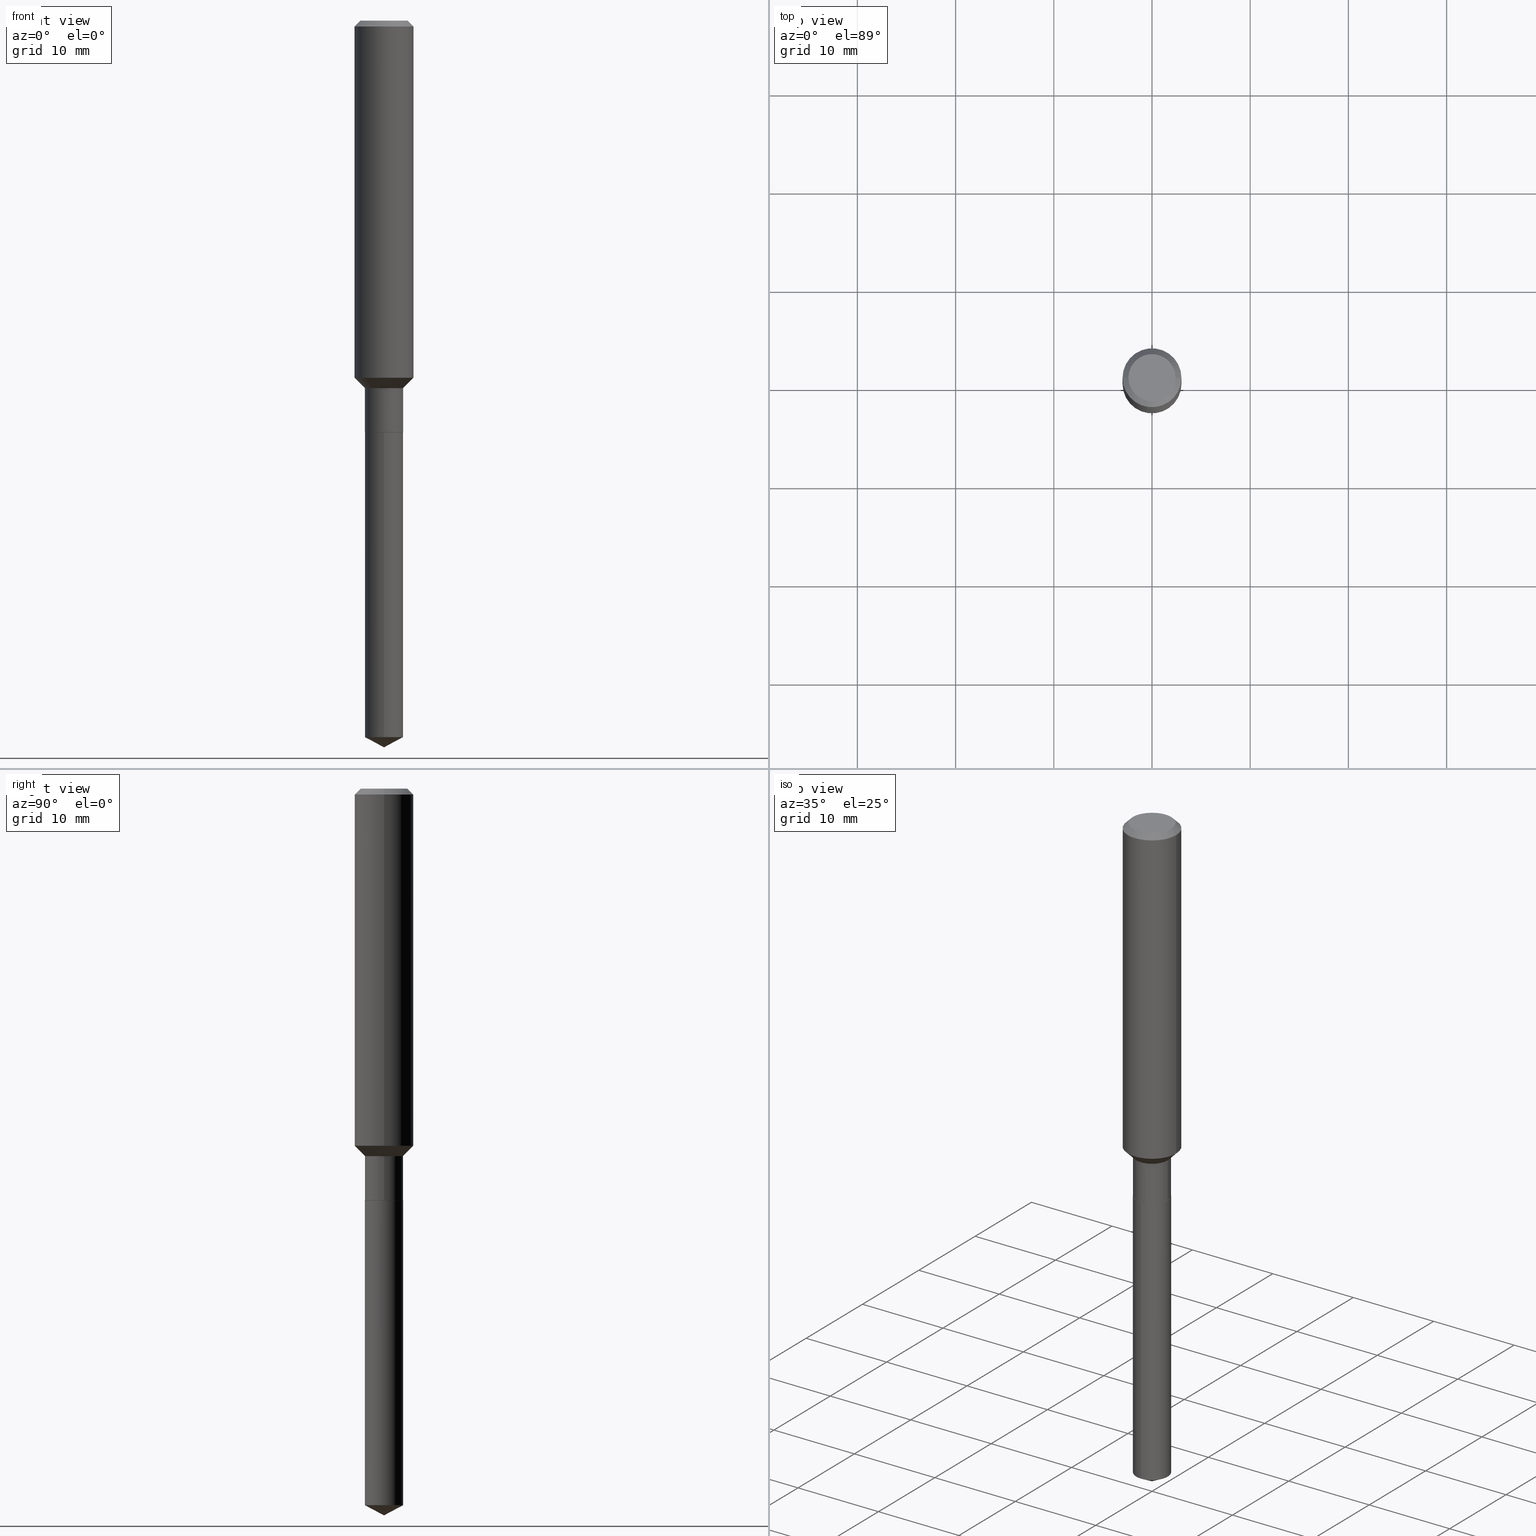
[diagram: canonical four-view strip — front | top / right | iso, engineering-drawing reading convention]
A machine part, canonical four-view strip (front | top / right | iso — engineering-drawing reading convention). The complete STEP part file that produces these views, byte-faithful:
ISO-10303-21;
HEADER;
FILE_DESCRIPTION (( 'STEP AP203' ),
    '1' );
FILE_NAME ('65009.STEP',
    '2024-04-24T19:45:47',
    ( '' ),
    ( '' ),
    'SwSTEP 2.0',
    'SolidWorks 2023',
    '' );
FILE_SCHEMA (( 'CONFIG_CONTROL_DESIGN' ));
ENDSEC;

DATA;
#1 = CARTESIAN_POINT ( 'NONE',  ( 0.07674999999999998490, -5.679243545762258658E-15, -1.473100000000000298 ) ) ;
#2 = CIRCLE ( 'NONE', #282, 0.07675000000000001266 ) ;
#3 = DIRECTION ( 'NONE',  ( 1.000000000000000000, 0.000000000000000000, 0.000000000000000000 ) ) ;
#4 = VERTEX_POINT ( 'NONE', #461 ) ;
#5 = ADVANCED_FACE ( 'NONE', ( #413 ), #339, .T. ) ;
#6 = APPROVAL_STATUS ( 'not_yet_approved' ) ;
#7 = EDGE_LOOP ( 'NONE', ( #47, #390, #361, #363 ) ) ;
#8 = CIRCLE ( 'NONE', #290, 0.07675000000000001266 ) ;
#9 = DIRECTION ( 'NONE',  ( -2.445468806185136597E-29, 3.491481338843145583E-15, 1.000000000000000000 ) ) ;
#10 = APPROVAL_PERSON_ORGANIZATION ( #312, #221, #124 ) ;
#11 = PRODUCT_RELATED_PRODUCT_CATEGORY ( 'detail', '', ( #77 ) ) ;
#12 = CARTESIAN_POINT ( 'NONE',  ( -0.07675000000000001266, -4.905209968372158594E-15, -1.649100000000000232 ) ) ;
#13 = EDGE_CURVE ( 'NONE', #319, #4, #170, .T. ) ;
#14 = DIRECTION ( 'NONE',  ( -2.445468806185136597E-29, 3.491481338843145583E-15, 1.000000000000000000 ) ) ;
#15 = ORIENTED_EDGE ( 'NONE', *, *, #80, .T. ) ;
#16 = FACE_OUTER_BOUND ( 'NONE', #181, .T. ) ;
#17 = AXIS2_PLACEMENT_3D ( 'NONE', #338, #490, #152 ) ;
#18 = VECTOR ( 'NONE', #226, 39.37007874015748143 ) ;
#19 = ORIENTED_EDGE ( 'NONE', *, *, #323, .T. ) ;
#20 = APPROVAL_PERSON_ORGANIZATION ( #22, #31, #478 ) ;
#21 = FACE_OUTER_BOUND ( 'NONE', #450, .T. ) ;
#22 = PERSON_AND_ORGANIZATION ( #327, #29 ) ;
#23 = EDGE_LOOP ( 'NONE', ( #378, #216, #197 ) ) ;
#24 = DESIGN_CONTEXT ( 'detailed design', #167, 'design' ) ;
#25 = FACE_OUTER_BOUND ( 'NONE', #249, .T. ) ;
#26 = EDGE_LOOP ( 'NONE', ( #422, #96, #57, #173 ) ) ;
#27 = FACE_OUTER_BOUND ( 'NONE', #26, .T. ) ;
#28 = ORIENTED_EDGE ( 'NONE', *, *, #39, .F. ) ;
#29 = ORGANIZATION ( 'UNSPECIFIED', 'UNSPECIFIED', '' ) ;
#30 = CARTESIAN_POINT ( 'NONE',  ( -0.07674999999999999878, 5.453415496958768840E-16, -3.775282681770640332E-30 ) ) ;
#31 = APPROVAL ( #298, 'UNSPECIFIED' ) ;
#32 = EDGE_CURVE ( 'NONE', #476, #213, #265, .T. ) ;
#33 = ORIENTED_EDGE ( 'NONE', *, *, #169, .T. ) ;
#34 = DIRECTION ( 'NONE',  ( 1.000000000000000000, -6.982962677686265133E-15, 0.000000000000000000 ) ) ;
#35 = ORIENTED_EDGE ( 'NONE', *, *, #133, .F. ) ;
#36 = CARTESIAN_POINT ( 'NONE',  ( -0.07674999999999998490, -4.597959610553962133E-15, -1.473100000000000298 ) ) ;
#37 = DIRECTION ( 'NONE',  ( 1.000000000000000000, -6.982962677686267499E-15, 4.875432709231658792E-29 ) ) ;
#38 = VECTOR ( 'NONE', #283, 39.37007874015748143 ) ;
#39 = EDGE_CURVE ( 'NONE', #319, #431, #69, .T. ) ;
#40 = CARTESIAN_POINT ( 'NONE',  ( 3.602420098391325292E-29, -5.143301160249838129E-15, -1.473100000000000298 ) ) ;
#41 = ADVANCED_BREP_SHAPE_REPRESENTATION ( '65009', ( #161, #153, #156 ), #224 ) ;
#42 = DIRECTION ( 'NONE',  ( -2.445461926384076009E-29, 3.491491191109838590E-15, 1.000000000000000000 ) ) ;
#43 = CC_DESIGN_PERSON_AND_ORGANIZATION_ASSIGNMENT ( #485, #215, ( #256 ) ) ;
#44 = AXIS2_PLACEMENT_3D ( 'NONE', #434, #403, #128 ) ;
#45 = MECHANICAL_CONTEXT ( 'NONE', #358, 'mechanical' ) ;
#46 = VECTOR ( 'NONE', #388, 39.37007874015748143 ) ;
#47 = ORIENTED_EDGE ( 'NONE', *, *, #309, .T. ) ;
#48 = CALENDAR_DATE ( 2024, 24, 4 ) ;
#49 = ORIENTED_EDGE ( 'NONE', *, *, #95, .T. ) ;
#50 = DIRECTION ( 'NONE',  ( -2.445468806185136597E-29, 3.491481338843145583E-15, 1.000000000000000000 ) ) ;
#51 = EDGE_CURVE ( 'NONE', #4, #319, #237, .T. ) ;
#52 = FACE_OUTER_BOUND ( 'NONE', #239, .T. ) ;
#53 = APPROVAL_PERSON_ORGANIZATION ( #328, #125, #223 ) ;
#54 = FACE_OUTER_BOUND ( 'NONE', #191, .T. ) ;
#55 = ORIENTED_EDGE ( 'NONE', *, *, #404, .T. ) ;
#56 = LINE ( 'NONE', #472, #81 ) ;
#57 = ORIENTED_EDGE ( 'NONE', *, *, #194, .F. ) ;
#58 = DIRECTION ( 'NONE',  ( -6.982962677686265133E-15, -1.000000000000000000, 0.000000000000000000 ) ) ;
#59 = AXIS2_PLACEMENT_3D ( 'NONE', #427, #76, #464 ) ;
#60 = CC_DESIGN_APPROVAL ( #31, ( #256 ) ) ;
#61 = CARTESIAN_POINT ( 'NONE',  ( -8.915340847255107669E-28, 1.272881889306803032E-13, 36.45667874015747856 ) ) ;
#62 = DIRECTION ( 'NONE',  ( 1.000000000000000000, -6.982962677686265922E-15, 4.876176775795935793E-29 ) ) ;
#63 = ORIENTED_EDGE ( 'NONE', *, *, #313, .F. ) ;
#64 = DIRECTION ( 'NONE',  ( -2.445468806185136597E-29, 3.491481338843145583E-15, 1.000000000000000000 ) ) ;
#65 = ORIENTED_EDGE ( 'NONE', *, *, #332, .T. ) ;
#66 = AXIS2_PLACEMENT_3D ( 'NONE', #117, #345, #192 ) ;
#67 = CARTESIAN_POINT ( 'NONE',  ( 5.453415496959472898E-16, 0.07674999999999423950, -1.649600000000000399 ) ) ;
#68 = CALENDAR_DATE ( 2024, 24, 4 ) ;
#69 = LINE ( 'NONE', #228, #179 ) ;
#70 = DIRECTION ( 'NONE',  ( -6.982962677686265922E-15, -1.000000000000000000, 3.541896320645560869E-15 ) ) ;
#71 = APPROVAL_STATUS ( 'not_yet_approved' ) ;
#72 = DIRECTION ( 'NONE',  ( 1.000000000000000000, -6.982962677686261189E-15, 0.000000000000000000 ) ) ;
#73 = LINE ( 'NONE', #238, #46 ) ;
#74 = DIRECTION ( 'NONE',  ( -2.445468806185136877E-29, 3.491481338843145188E-15, 1.000000000000000000 ) ) ;
#75 = CIRCLE ( 'NONE', #203, 0.07675000000000001266 ) ;
#76 = DIRECTION ( 'NONE',  ( -2.438088387897960049E-29, 3.491481338843145188E-15, 1.000000000000000000 ) ) ;
#77 = PRODUCT ( '65009', '65009', '', ( #45 ) ) ;
#78 = DIRECTION ( 'NONE',  ( -2.445461926384076289E-29, 3.491491191109838590E-15, 1.000000000000000000 ) ) ;
#79 = CARTESIAN_POINT ( 'NONE',  ( 0.000000000000000000, 0.000000000000000000, 0.000000000000000000 ) ) ;
#80 = EDGE_CURVE ( 'NONE', #367, #420, #306, .T. ) ;
#81 = VECTOR ( 'NONE', #165, 39.37007874015748143 ) ;
#82 = AXIS2_PLACEMENT_3D ( 'NONE', #287, #294, #484 ) ;
#83 = CARTESIAN_POINT ( 'NONE',  ( 4.034045342683001816E-29, -5.759547616555652555E-15, -1.649600000000000177 ) ) ;
#84 = CONICAL_SURFACE ( 'NONE', #398, 74.04434902938353957, 1.082104136236486491 ) ;
#85 = VERTEX_POINT ( 'NONE', #359 ) ;
#86 = APPLICATION_PROTOCOL_DEFINITION ( 'international standard', 'config_control_design', 1994, #167 ) ;
#87 = DIRECTION ( 'NONE',  ( 1.000000000000000000, -6.982962677686261189E-15, 0.000000000000000000 ) ) ;
#88 = CC_DESIGN_PERSON_AND_ORGANIZATION_ASSIGNMENT ( #121, #276, ( #77 ) ) ;
#89 = EDGE_CURVE ( 'NONE', #333, #431, #56, .T. ) ;
#90 = CYLINDRICAL_SURFACE ( 'NONE', #445, 0.07674999999999999878 ) ;
#91 = CARTESIAN_POINT ( 'NONE',  ( 3.602420098391325292E-29, -5.143301160249838129E-15, -1.473100000000000298 ) ) ;
#92 = CC_DESIGN_APPROVAL ( #125, ( #438 ) ) ;
#93 = DIRECTION ( 'NONE',  ( 1.000000000000000000, -6.982962677686265133E-15, 0.000000000000000000 ) ) ;
#94 = CARTESIAN_POINT ( 'NONE',  ( 5.776197320209328408E-31, -8.246878922347560526E-17, -0.02362000000000014435 ) ) ;
#95 = EDGE_CURVE ( 'NONE', #122, #367, #396, .T. ) ;
#96 = ORIENTED_EDGE ( 'NONE', *, *, #32, .T. ) ;
#97 = DIRECTION ( 'NONE',  ( -2.445461926384076009E-29, 3.491491191109838590E-15, 1.000000000000000000 ) ) ;
#98 = AXIS2_PLACEMENT_3D ( 'NONE', #229, #255, #457 ) ;
#99 = ORIENTED_EDGE ( 'NONE', *, *, #279, .F. ) ;
#100 = FACE_OUTER_BOUND ( 'NONE', #104, .T. ) ;
#101 = ADVANCED_FACE ( 'NONE', ( #16 ), #435, .F. ) ;
#102 = CARTESIAN_POINT ( 'NONE',  ( 0.09447999999999998066, -7.704367267948738690E-16, -1.928573779296752193E-17 ) ) ;
#103 = CALENDAR_DATE ( 2024, 24, 4 ) ;
#104 = EDGE_LOOP ( 'NONE', ( #286, #143, #15, #35 ) ) ;
#105 = CARTESIAN_POINT ( 'NONE',  ( 7.124631673200286998E-29, -1.017207793158113185E-14, -2.913400000000000212 ) ) ;
#106 = APPROVAL_DATE_TIME ( #373, #31 ) ;
#107 = AXIS2_PLACEMENT_3D ( 'NONE', #436, #212, #93 ) ;
#108 = CARTESIAN_POINT ( 'NONE',  ( 4.716267017698007905E-46, -6.733579360998555036E-32, -1.928573779297252010E-17 ) ) ;
#109 = VECTOR ( 'NONE', #78, 39.37007874015748143 ) ;
#110 = CARTESIAN_POINT ( 'NONE',  ( 5.776197320209328408E-31, -8.246878922347560526E-17, -0.02362000000000014435 ) ) ;
#111 = COORDINATED_UNIVERSAL_TIME_OFFSET ( 5, 0, .BEHIND. ) ;
#112 = ORIENTED_EDGE ( 'NONE', *, *, #32, .F. ) ;
#113 = CARTESIAN_POINT ( 'NONE',  ( -5.359423855123805922E-16, -0.07675000000000577194, -1.649599999999999733 ) ) ;
#114 = ADVANCED_FACE ( 'NONE', ( #278 ), #127, .T. ) ;
#115 = CARTESIAN_POINT ( 'NONE',  ( 0.07674999999999999878, -5.359423855124209227E-16, 3.742465675423380805E-30 ) ) ;
#116 = PRODUCT_DEFINITION_SHAPE ( 'NONE', 'NONE',  #159 ) ;
#117 = CARTESIAN_POINT ( 'NONE',  ( 4.034045342683001816E-29, -5.759547616555652555E-15, -1.649600000000000177 ) ) ;
#118 = CLOSED_SHELL ( 'NONE', ( #114, #296, #354, #426, #274 ) ) ;
#119 =( CONVERSION_BASED_UNIT ( 'INCH', #424 ) LENGTH_UNIT ( ) NAMED_UNIT ( #429 ) );
#120 = ADVANCED_FACE ( 'NONE', ( #54 ), #320, .T. ) ;
#121 = PERSON_AND_ORGANIZATION ( #327, #29 ) ;
#122 = VERTEX_POINT ( 'NONE', #171 ) ;
#123 = AXIS2_PLACEMENT_3D ( 'NONE', #40, #385, #268 ) ;
#124 = APPROVAL_ROLE ( '' ) ;
#125 = APPROVAL ( #71, 'UNSPECIFIED' ) ;
#126 = DIRECTION ( 'NONE',  ( -2.445468806185136597E-29, 3.491481338843145583E-15, 1.000000000000000000 ) ) ;
#127 = CYLINDRICAL_SURFACE ( 'NONE', #44, 0.07675000000000001266 ) ;
#128 = DIRECTION ( 'NONE',  ( -6.982962677686265133E-15, -1.000000000000000000, 3.559411066663534686E-15 ) ) ;
#129 = CC_DESIGN_PERSON_AND_ORGANIZATION_ASSIGNMENT ( #351, #160, ( #159 ) ) ;
#130 = VECTOR ( 'NONE', #74, 39.37007874015748143 ) ;
#131 = CARTESIAN_POINT ( 'NONE',  ( 7.124608776327367314E-29, -1.017211043617940411E-14, -2.913400000000000212 ) ) ;
#132 = ORIENTED_EDGE ( 'NONE', *, *, #206, .F. ) ;
#133 = EDGE_CURVE ( 'NONE', #350, #420, #243, .T. ) ;
#134 = CARTESIAN_POINT ( 'NONE',  ( 0.07625000000000001221, -6.291998520729230865E-15, -1.649600000000000177 ) ) ;
#135 = ORIENTED_EDGE ( 'NONE', *, *, #372, .T. ) ;
#136 = CARTESIAN_POINT ( 'NONE',  ( 0.1181000000000001632, -5.823616299123422919E-15, -1.431750000000000078 ) ) ;
#137 = ADVANCED_FACE ( 'NONE', ( #21 ), #163, .T. ) ;
#138 = EDGE_LOOP ( 'NONE', ( #335, #19, #267 ) ) ;
#139 = CYLINDRICAL_SURFACE ( 'NONE', #304, 0.1181000000000000799 ) ;
#140 = AXIS2_PLACEMENT_3D ( 'NONE', #94, #126, #277 ) ;
#141 = CIRCLE ( 'NONE', #425, 0.07675000000000001266 ) ;
#142 = ADVANCED_FACE ( 'NONE', ( #250 ), #90, .T. ) ;
#143 = ORIENTED_EDGE ( 'NONE', *, *, #187, .T. ) ;
#144 = CARTESIAN_POINT ( 'NONE',  ( 0.07675000000000001266, -6.293744261398653157E-15, -1.649100000000000232 ) ) ;
#145 = CARTESIAN_POINT ( 'NONE',  ( 4.034045342683001816E-29, -5.759547616555652555E-15, -1.649600000000000177 ) ) ;
#146 = DATE_AND_TIME ( #412, #415 ) ;
#147 = DIRECTION ( 'NONE',  ( -2.445468806185136597E-29, 3.491481338843145583E-15, 1.000000000000000000 ) ) ;
#148 = LINE ( 'NONE', #36, #456 ) ;
#149 = ORIENTED_EDGE ( 'NONE', *, *, #313, .T. ) ;
#150 = CARTESIAN_POINT ( 'NONE',  ( 4.032822608279909015E-29, -5.757801875886231840E-15, -1.649100000000000232 ) ) ;
#151 = EDGE_CURVE ( 'NONE', #262, #225, #366, .T. ) ;
#152 = DIRECTION ( 'NONE',  ( 1.000000000000000000, -6.982962677686267499E-15, 4.875432709231658792E-29 ) ) ;
#153 = MANIFOLD_SOLID_BREP ( 'Body-Move/Copy2[2]', #189 ) ;
#154 = CARTESIAN_POINT ( 'NONE',  ( 7.124608776327368435E-29, -1.017211043617940568E-14, -2.913400000000000212 ) ) ;
#155 = AXIS2_PLACEMENT_3D ( 'NONE', #322, #248, #246 ) ;
#156 = AXIS2_PLACEMENT_3D ( 'NONE', #79, #349, #3 ) ;
#157 = CARTESIAN_POINT ( 'NONE',  ( 0.07674999999999998490, -5.679243545762258658E-15, -1.473100000000000298 ) ) ;
#158 = ORIENTED_EDGE ( 'NONE', *, *, #13, .F. ) ;
#159 = PRODUCT_DEFINITION ( 'UNKNOWN', '', #438, #24 ) ;
#160 = PERSON_AND_ORGANIZATION_ROLE ( 'creator' ) ;
#161 = MANIFOLD_SOLID_BREP ( 'Body-Move/Copy2[1]', #118 ) ;
#162 = ORIENTED_EDGE ( 'NONE', *, *, #343, .F. ) ;
#163 = CONICAL_SURFACE ( 'NONE', #281, 0.07674999999999998490, 0.7853981633974492782 ) ;
#164 = LOCAL_TIME ( 15, 45, 47.00000000000000000, #257 ) ;
#165 = DIRECTION ( 'NONE',  ( -2.445468806185136877E-29, 3.491481338843145188E-15, 1.000000000000000000 ) ) ;
#166 = CARTESIAN_POINT ( 'NONE',  ( 5.776197320209328408E-31, -8.246878922347560526E-17, -0.02362000000000014435 ) ) ;
#167 = APPLICATION_CONTEXT ( 'configuration controlled 3d designs of mechanical parts and assemblies' ) ;
#168 = FACE_OUTER_BOUND ( 'NONE', #199, .T. ) ;
#169 = EDGE_CURVE ( 'NONE', #443, #85, #437, .T. ) ;
#170 = CIRCLE ( 'NONE', #397, 0.09447999999999998066 ) ;
#171 = CARTESIAN_POINT ( 'NONE',  ( 0.07625000000000001221, -6.291998520729230865E-15, -1.649600000000000177 ) ) ;
#172 = CIRCLE ( 'NONE', #244, 0.07625000000000001221 ) ;
#173 = ORIENTED_EDGE ( 'NONE', *, *, #89, .F. ) ;
#174 = DIRECTION ( 'NONE',  ( -2.445468806185136597E-29, 3.491481338843145583E-15, 1.000000000000000000 ) ) ;
#175 = SECURITY_CLASSIFICATION_LEVEL ( 'unclassified' ) ;
#176 = LINE ( 'NONE', #488, #447 ) ;
#177 = VERTEX_POINT ( 'NONE', #399 ) ;
#178 = DIRECTION ( 'NONE',  ( -2.445461926384076009E-29, 3.491491191109838590E-15, 1.000000000000000000 ) ) ;
#179 = VECTOR ( 'NONE', #381, 39.37007874015748143 ) ;
#180 = AXIS2_PLACEMENT_3D ( 'NONE', #214, #297, #182 ) ;
#181 = EDGE_LOOP ( 'NONE', ( #455, #446 ) ) ;
#182 = DIRECTION ( 'NONE',  ( 1.000000000000000000, -6.982962677686265133E-15, 0.000000000000000000 ) ) ;
#183 = ORIENTED_EDGE ( 'NONE', *, *, #468, .F. ) ;
#184 = FACE_OUTER_BOUND ( 'NONE', #7, .T. ) ;
#185 = PERSON_AND_ORGANIZATION_ROLE ( 'design_supplier' ) ;
#186 = ORIENTED_EDGE ( 'NONE', *, *, #479, .F. ) ;
#187 = EDGE_CURVE ( 'NONE', #225, #367, #8, .T. ) ;
#188 = LINE ( 'NONE', #1, #211 ) ;
#189 = CLOSED_SHELL ( 'NONE', ( #270, #227, #288, #137, #142, #368, #5, #200, #259, #101, #439, #120 ) ) ;
#190 = AXIS2_PLACEMENT_3D ( 'NONE', #217, #64, #377 ) ;
#191 = EDGE_LOOP ( 'NONE', ( #410, #284, #49, #299 ) ) ;
#192 = DIRECTION ( 'NONE',  ( -6.982962677686265133E-15, -1.000000000000000000, 3.559411066663534686E-15 ) ) ;
#193 = DIRECTION ( 'NONE',  ( 0.7071067811865482389, -2.468850131082264555E-15, 0.7071067811865467956 ) ) ;
#194 = EDGE_CURVE ( 'NONE', #431, #213, #356, .T. ) ;
#195 = FACE_OUTER_BOUND ( 'NONE', #293, .T. ) ;
#196 = CIRCLE ( 'NONE', #82, 0.07625000000000001221 ) ;
#197 = ORIENTED_EDGE ( 'NONE', *, *, #332, .F. ) ;
#198 = APPROVAL_DATE_TIME ( #240, #221 ) ;
#199 = EDGE_LOOP ( 'NONE', ( #158, #459, #236, #186 ) ) ;
#200 = ADVANCED_FACE ( 'NONE', ( #52 ), #201, .T. ) ;
#201 = CYLINDRICAL_SURFACE ( 'NONE', #202, 0.1181000000000000799 ) ;
#202 = AXIS2_PLACEMENT_3D ( 'NONE', #355, #9, #242 ) ;
#203 = AXIS2_PLACEMENT_3D ( 'NONE', #150, #430, #235 ) ;
#204 = CARTESIAN_POINT ( 'NONE',  ( -0.1180999999999999966, -1.701547627123395282E-15, -0.02362000000000014435 ) ) ;
#205 = CARTESIAN_POINT ( 'NONE',  ( 3.501299963255569444E-29, -4.998928406888673868E-15, -1.431750000000000078 ) ) ;
#206 = EDGE_CURVE ( 'NONE', #333, #476, #222, .T. ) ;
#207 = EDGE_LOOP ( 'NONE', ( #33, #400, #325, #407 ) ) ;
#208 = CARTESIAN_POINT ( 'NONE',  ( 2.358133508849003952E-46, -3.366789680499277518E-32, -9.642868896486260050E-18 ) ) ;
#209 = EDGE_LOOP ( 'NONE', ( #219, #162 ) ) ;
#210 = VECTOR ( 'NONE', #280, 39.37007874015748143 ) ;
#211 = VECTOR ( 'NONE', #193, 39.37007874015748143 ) ;
#212 = DIRECTION ( 'NONE',  ( -2.445468806185136597E-29, 3.491481338843145583E-15, 1.000000000000000000 ) ) ;
#213 = VERTEX_POINT ( 'NONE', #204 ) ;
#214 = CARTESIAN_POINT ( 'NONE',  ( 4.034045342683001816E-29, -5.759547616555652555E-15, -1.649600000000000177 ) ) ;
#215 = PERSON_AND_ORGANIZATION_ROLE ( 'classification_officer' ) ;
#216 = ORIENTED_EDGE ( 'NONE', *, *, #234, .T. ) ;
#217 = CARTESIAN_POINT ( 'NONE',  ( 5.776197320209328408E-31, -8.246878922347560526E-17, -0.02362000000000014435 ) ) ;
#218 = COORDINATED_UNIVERSAL_TIME_OFFSET ( 5, 0, .BEHIND. ) ;
#219 = ORIENTED_EDGE ( 'NONE', *, *, #309, .F. ) ;
#220 = DIRECTION ( 'NONE',  ( 1.000000000000000000, -6.982962677686266711E-15, 4.876176775795936353E-29 ) ) ;
#221 = APPROVAL ( #6, 'UNSPECIFIED' ) ;
#222 = CIRCLE ( 'NONE', #423, 0.1181000000000001632 ) ;
#223 = APPROVAL_ROLE ( '' ) ;
#224 =( GEOMETRIC_REPRESENTATION_CONTEXT ( 3 ) GLOBAL_UNCERTAINTY_ASSIGNED_CONTEXT ( ( #481 ) ) GLOBAL_UNIT_ASSIGNED_CONTEXT ( ( #119, #232, #272 ) ) REPRESENTATION_CONTEXT ( 'NONE', 'WORKASPACE' ) );
#225 = VERTEX_POINT ( 'NONE', #12 ) ;
#226 = DIRECTION ( 'NONE',  ( -2.445468806185136877E-29, 3.491481338843145188E-15, 1.000000000000000000 ) ) ;
#227 = ADVANCED_FACE ( 'NONE', ( #168 ), #357, .T. ) ;
#228 = CARTESIAN_POINT ( 'NONE',  ( 0.1180999999999999966, -8.926936027602933910E-16, -0.02362000000000014435 ) ) ;
#229 = CARTESIAN_POINT ( 'NONE',  ( 4.034045342683001816E-29, -5.759547616555652555E-15, -1.649600000000000177 ) ) ;
#230 = PERSON_AND_ORGANIZATION_ROLE ( 'creator' ) ;
#231 = CARTESIAN_POINT ( 'NONE',  ( -0.1181000000000000799, 8.391509709326788873E-16, -5.809262341591047988E-30 ) ) ;
#232 =( NAMED_UNIT ( * ) PLANE_ANGLE_UNIT ( ) SI_UNIT ( $, .RADIAN. ) );
#233 = AXIS2_PLACEMENT_3D ( 'NONE', #394, #401, #58 ) ;
#234 = EDGE_CURVE ( 'NONE', #402, #443, #318, .T. ) ;
#235 = DIRECTION ( 'NONE',  ( 1.000000000000000000, -6.982962677686271444E-15, 0.000000000000000000 ) ) ;
#236 = ORIENTED_EDGE ( 'NONE', *, *, #194, .T. ) ;
#237 = CIRCLE ( 'NONE', #17, 0.09447999999999998066 ) ;
#238 = CARTESIAN_POINT ( 'NONE',  ( -0.1180999999999999966, 7.422191030112725094E-16, -0.02362000000000014435 ) ) ;
#239 = EDGE_LOOP ( 'NONE', ( #112, #305, #374, #258 ) ) ;
#240 = DATE_AND_TIME ( #48, #308 ) ;
#241 = CARTESIAN_POINT ( 'NONE',  ( -0.07625000000000001221, -5.217758780538575879E-15, -1.649600000000000177 ) ) ;
#242 = DIRECTION ( 'NONE',  ( 1.000000000000000000, -6.982962677686266711E-15, 4.876176775795936353E-29 ) ) ;
#243 = CIRCLE ( 'NONE', #155, 0.07674999999999998490 ) ;
#244 = AXIS2_PLACEMENT_3D ( 'NONE', #448, #379, #34 ) ;
#245 = EDGE_CURVE ( 'NONE', #225, #350, #266, .T. ) ;
#246 = DIRECTION ( 'NONE',  ( 1.000000000000000000, -6.982962677686261189E-15, 0.000000000000000000 ) ) ;
#247 = ORIENTED_EDGE ( 'NONE', *, *, #468, .T. ) ;
#248 = DIRECTION ( 'NONE',  ( -2.445468806185136597E-29, 3.491481338843145583E-15, 1.000000000000000000 ) ) ;
#249 = EDGE_LOOP ( 'NONE', ( #28, #314, #489, #135 ) ) ;
#250 = FACE_OUTER_BOUND ( 'NONE', #393, .T. ) ;
#251 = CC_DESIGN_PERSON_AND_ORGANIZATION_ASSIGNMENT ( #295, #230, ( #438 ) ) ;
#252 = ORIENTED_EDGE ( 'NONE', *, *, #395, .T. ) ;
#253 = VECTOR ( 'NONE', #467, 39.37007874015748143 ) ;
#254 = CONICAL_SURFACE ( 'NONE', #180, 0.07625000000000001221, 0.7853981633975507526 ) ;
#255 = DIRECTION ( 'NONE',  ( 2.445461926384075448E-29, -3.491491191109838590E-15, -1.000000000000000000 ) ) ;
#256 = SECURITY_CLASSIFICATION ( '', '', #175 ) ;
#257 = COORDINATED_UNIVERSAL_TIME_OFFSET ( 5, 0, .BEHIND. ) ;
#258 = ORIENTED_EDGE ( 'NONE', *, *, #372, .F. ) ;
#259 = ADVANCED_FACE ( 'NONE', ( #25 ), #321, .T. ) ;
#260 = FACE_OUTER_BOUND ( 'NONE', #138, .T. ) ;
#261 = CYLINDRICAL_SURFACE ( 'NONE', #376, 0.07674999999999999878 ) ;
#262 = VERTEX_POINT ( 'NONE', #406 ) ;
#263 = DIRECTION ( 'NONE',  ( -6.982962677686265922E-15, -1.000000000000000000, 3.541896320645560869E-15 ) ) ;
#264 = AXIS2_PLACEMENT_3D ( 'NONE', #83, #42, #428 ) ;
#265 = LINE ( 'NONE', #231, #300 ) ;
#266 = LINE ( 'NONE', #30, #18 ) ;
#267 = ORIENTED_EDGE ( 'NONE', *, *, #169, .F. ) ;
#268 = DIRECTION ( 'NONE',  ( 1.000000000000000000, -6.982962677686261189E-15, 0.000000000000000000 ) ) ;
#269 = DIRECTION ( 'NONE',  ( -2.445468806185136597E-29, 3.491481338843145583E-15, 1.000000000000000000 ) ) ;
#270 = ADVANCED_FACE ( 'NONE', ( #184 ), #254, .T. ) ;
#271 = CARTESIAN_POINT ( 'NONE',  ( 3.501299963255569444E-29, -4.998928406888673868E-15, -1.431750000000000078 ) ) ;
#272 =( NAMED_UNIT ( * ) SI_UNIT ( $, .STERADIAN. ) SOLID_ANGLE_UNIT ( ) );
#273 = ORIENTED_EDGE ( 'NONE', *, *, #487, .F. ) ;
#274 = ADVANCED_FACE ( 'NONE', ( #477 ), #408, .F. ) ;
#275 = CIRCLE ( 'NONE', #264, 0.07675000000000001266 ) ;
#276 = PERSON_AND_ORGANIZATION_ROLE ( 'design_owner' ) ;
#277 = DIRECTION ( 'NONE',  ( 1.000000000000000000, -6.982962677686266711E-15, 0.000000000000000000 ) ) ;
#278 = FACE_OUTER_BOUND ( 'NONE', #207, .T. ) ;
#279 = EDGE_CURVE ( 'NONE', #85, #289, #176, .T. ) ;
#280 = DIRECTION ( 'NONE',  ( 0.7071067811866199593, -2.468850131083015945E-15, 0.7071067811864750752 ) ) ;
#281 = AXIS2_PLACEMENT_3D ( 'NONE', #91, #285, #87 ) ;
#282 = AXIS2_PLACEMENT_3D ( 'NONE', #145, #97, #301 ) ;
#283 = DIRECTION ( 'NONE',  ( -6.165590087286835240E-15, -0.8829475928589263223, 0.4694715627858919715 ) ) ;
#284 = ORIENTED_EDGE ( 'NONE', *, *, #343, .T. ) ;
#285 = DIRECTION ( 'NONE',  ( -2.445468806185136597E-29, 3.491481338843145583E-15, 1.000000000000000000 ) ) ;
#286 = ORIENTED_EDGE ( 'NONE', *, *, #245, .F. ) ;
#287 = CARTESIAN_POINT ( 'NONE',  ( 4.034045342683001816E-29, -5.759547616555652555E-15, -1.649600000000000177 ) ) ;
#288 = ADVANCED_FACE ( 'NONE', ( #27 ), #139, .T. ) ;
#289 = VERTEX_POINT ( 'NONE', #67 ) ;
#290 = AXIS2_PLACEMENT_3D ( 'NONE', #362, #50, #473 ) ;
#291 = CC_DESIGN_APPROVAL ( #221, ( #159 ) ) ;
#292 = DIRECTION ( 'NONE',  ( -2.445468806185136597E-29, 3.491481338843145583E-15, 1.000000000000000000 ) ) ;
#293 = EDGE_LOOP ( 'NONE', ( #99, #65, #342, #465 ) ) ;
#294 = DIRECTION ( 'NONE',  ( -2.445468806185136597E-29, 3.491481338843145583E-15, 1.000000000000000000 ) ) ;
#295 = PERSON_AND_ORGANIZATION ( #327, #29 ) ;
#296 = ADVANCED_FACE ( 'NONE', ( #260 ), #84, .T. ) ;
#297 = DIRECTION ( 'NONE',  ( -2.445468806185136597E-29, 3.491481338843145583E-15, 1.000000000000000000 ) ) ;
#298 = APPROVAL_STATUS ( 'not_yet_approved' ) ;
#299 = ORIENTED_EDGE ( 'NONE', *, *, #187, .F. ) ;
#300 = VECTOR ( 'NONE', #417, 39.37007874015748143 ) ;
#301 = DIRECTION ( 'NONE',  ( -6.982962677686265133E-15, -1.000000000000000000, 3.559411066663534686E-15 ) ) ;
#302 = VECTOR ( 'NONE', #475, 39.37007874015748854 ) ;
#303 = CALENDAR_DATE ( 2024, 24, 4 ) ;
#304 = AXIS2_PLACEMENT_3D ( 'NONE', #451, #371, #220 ) ;
#305 = ORIENTED_EDGE ( 'NONE', *, *, #487, .T. ) ;
#306 = LINE ( 'NONE', #115, #130 ) ;
#307 = LINE ( 'NONE', #113, #109 ) ;
#308 = LOCAL_TIME ( 15, 45, 47.00000000000000000, #433 ) ;
#309 = EDGE_CURVE ( 'NONE', #122, #262, #172, .T. ) ;
#310 = CYLINDRICAL_SURFACE ( 'NONE', #66, 0.07675000000000001266 ) ;
#311 = ORIENTED_EDGE ( 'NONE', *, *, #395, .F. ) ;
#312 = PERSON_AND_ORGANIZATION ( #327, #29 ) ;
#313 = EDGE_CURVE ( 'NONE', #350, #476, #148, .T. ) ;
#314 = ORIENTED_EDGE ( 'NONE', *, *, #51, .F. ) ;
#315 = AXIS2_PLACEMENT_3D ( 'NONE', #110, #326, #336 ) ;
#316 = DIRECTION ( 'NONE',  ( -1.000000000000000000, 6.982962677686265922E-15, -4.876176775795935793E-29 ) ) ;
#317 = DIRECTION ( 'NONE',  ( 2.445468806185136597E-29, -3.491481338843145583E-15, -1.000000000000000000 ) ) ;
#318 = LINE ( 'NONE', #131, #38 ) ;
#319 = VERTEX_POINT ( 'NONE', #102 ) ;
#320 = CONICAL_SURFACE ( 'NONE', #107, 0.07625000000000001221, 0.7853981633975507526 ) ;
#321 = CONICAL_SURFACE ( 'NONE', #315, 0.1180999999999999966, 0.7853981633974459475 ) ;
#322 = CARTESIAN_POINT ( 'NONE',  ( 3.602420098391325292E-29, -5.143301160249838129E-15, -1.473100000000000298 ) ) ;
#323 = EDGE_CURVE ( 'NONE', #402, #85, #382, .T. ) ;
#324 = DIRECTION ( 'NONE',  ( -6.982962677686265133E-15, -1.000000000000000000, 0.000000000000000000 ) ) ;
#325 = ORIENTED_EDGE ( 'NONE', *, *, #348, .F. ) ;
#326 = DIRECTION ( 'NONE',  ( 2.445468806185136597E-29, -3.491481338843145583E-15, -1.000000000000000000 ) ) ;
#327 = PERSON ( 'UNSPECIFIED', 'UNSPECIFIED', 'UNSPECIFIED', ('UNSPECIFIED'), ('UNSPECIFIED'), ('UNSPECIFIED') ) ;
#328 = PERSON_AND_ORGANIZATION ( #327, #29 ) ;
#329 = ORIENTED_EDGE ( 'NONE', *, *, #245, .T. ) ;
#330 = LOCAL_TIME ( 15, 45, 47.00000000000000000, #218 ) ;
#331 = CARTESIAN_POINT ( 'NONE',  ( -0.07674999999999998490, -4.905209968372158594E-15, -1.473100000000000298 ) ) ;
#332 = EDGE_CURVE ( 'NONE', #85, #443, #141, .T. ) ;
#333 = VERTEX_POINT ( 'NONE', #136 ) ;
#334 = CARTESIAN_POINT ( 'NONE',  ( -8.915340847255107669E-28, 1.272881889306803032E-13, 36.45667874015747856 ) ) ;
#335 = ORIENTED_EDGE ( 'NONE', *, *, #234, .F. ) ;
#336 = DIRECTION ( 'NONE',  ( -1.000000000000000000, 6.982962677686266711E-15, 0.000000000000000000 ) ) ;
#337 = DATE_TIME_ROLE ( 'classification_date' ) ;
#338 = CARTESIAN_POINT ( 'NONE',  ( 4.716267017698007905E-46, -6.733579360998555036E-32, -1.928573779297252010E-17 ) ) ;
#339 = CONICAL_SURFACE ( 'NONE', #375, 0.07674999999999998490, 0.7853981633974492782 ) ;
#340 =( LENGTH_UNIT ( ) NAMED_UNIT ( * ) SI_UNIT ( $, .METRE. ) );
#341 = CIRCLE ( 'NONE', #123, 0.07674999999999998490 ) ;
#342 = ORIENTED_EDGE ( 'NONE', *, *, #384, .T. ) ;
#343 = EDGE_CURVE ( 'NONE', #262, #122, #196, .T. ) ;
#344 = FACE_OUTER_BOUND ( 'NONE', #209, .T. ) ;
#345 = DIRECTION ( 'NONE',  ( -2.445461926384076009E-29, 3.491491191109838590E-15, 1.000000000000000000 ) ) ;
#346 = AXIS2_PLACEMENT_3D ( 'NONE', #166, #317, #470 ) ;
#347 = CC_DESIGN_SECURITY_CLASSIFICATION ( #256, ( #438 ) ) ;
#348 = EDGE_CURVE ( 'NONE', #177, #289, #2, .T. ) ;
#349 = DIRECTION ( 'NONE',  ( 0.000000000000000000, 0.000000000000000000, 1.000000000000000000 ) ) ;
#350 = VERTEX_POINT ( 'NONE', #331 ) ;
#351 = PERSON_AND_ORGANIZATION ( #327, #29 ) ;
#352 = ORIENTED_EDGE ( 'NONE', *, *, #419, .T. ) ;
#353 = CC_DESIGN_PERSON_AND_ORGANIZATION_ASSIGNMENT ( #449, #185, ( #438 ) ) ;
#354 = ADVANCED_FACE ( 'NONE', ( #416 ), #386, .T. ) ;
#355 = CARTESIAN_POINT ( 'NONE',  ( 0.000000000000000000, 0.000000000000000000, 0.000000000000000000 ) ) ;
#356 = CIRCLE ( 'NONE', #140, 0.1180999999999999966 ) ;
#357 = CONICAL_SURFACE ( 'NONE', #346, 0.1180999999999999966, 0.7853981633974459475 ) ;
#358 = APPLICATION_CONTEXT ( 'configuration controlled 3d designs of mechanical parts and assemblies' ) ;
#359 = CARTESIAN_POINT ( 'NONE',  ( 5.453415496959469940E-16, 0.07674999999998996514, -2.872591301119981733 ) ) ;
#360 = CARTESIAN_POINT ( 'NONE',  ( 0.000000000000000000, 0.000000000000000000, 0.000000000000000000 ) ) ;
#361 = ORIENTED_EDGE ( 'NONE', *, *, #404, .F. ) ;
#362 = CARTESIAN_POINT ( 'NONE',  ( 4.032822608279909015E-29, -5.757801875886231840E-15, -1.649100000000000232 ) ) ;
#363 = ORIENTED_EDGE ( 'NONE', *, *, #95, .F. ) ;
#364 = AXIS2_PLACEMENT_3D ( 'NONE', #61, #369, #263 ) ;
#365 = LOCAL_TIME ( 15, 45, 47.00000000000000000, #111 ) ;
#366 = LINE ( 'NONE', #241, #253 ) ;
#367 = VERTEX_POINT ( 'NONE', #144 ) ;
#368 = ADVANCED_FACE ( 'NONE', ( #100 ), #261, .T. ) ;
#369 = DIRECTION ( 'NONE',  ( -2.445461926384076009E-29, 3.491491191109838590E-15, 1.000000000000000000 ) ) ;
#370 = ORIENTED_EDGE ( 'NONE', *, *, #133, .T. ) ;
#371 = DIRECTION ( 'NONE',  ( -2.445468806185136597E-29, 3.491481338843145583E-15, 1.000000000000000000 ) ) ;
#372 = EDGE_CURVE ( 'NONE', #213, #431, #432, .T. ) ;
#373 = DATE_AND_TIME ( #103, #164 ) ;
#374 = ORIENTED_EDGE ( 'NONE', *, *, #89, .T. ) ;
#375 = AXIS2_PLACEMENT_3D ( 'NONE', #486, #147, #72 ) ;
#376 = AXIS2_PLACEMENT_3D ( 'NONE', #411, #292, #62 ) ;
#377 = DIRECTION ( 'NONE',  ( 1.000000000000000000, -6.982962677686266711E-15, 0.000000000000000000 ) ) ;
#378 = ORIENTED_EDGE ( 'NONE', *, *, #323, .F. ) ;
#379 = DIRECTION ( 'NONE',  ( -2.445468806185136597E-29, 3.491481338843145583E-15, 1.000000000000000000 ) ) ;
#380 = CC_DESIGN_DATE_AND_TIME_ASSIGNMENT ( #146, #454, ( #159 ) ) ;
#381 = DIRECTION ( 'NONE',  ( 0.7071067811865459074, -7.319954787623251312E-15, -0.7071067811865492381 ) ) ;
#382 = LINE ( 'NONE', #105, #302 ) ;
#383 = EDGE_LOOP ( 'NONE', ( #474, #352 ) ) ;
#384 = EDGE_CURVE ( 'NONE', #443, #177, #307, .T. ) ;
#385 = DIRECTION ( 'NONE',  ( -2.445468806185136597E-29, 3.491481338843145583E-15, 1.000000000000000000 ) ) ;
#386 = CONICAL_SURFACE ( 'NONE', #364, 74.04434902938353957, 1.082104136236486491 ) ;
#387 = APPLICATION_PROTOCOL_DEFINITION ( 'international standard', 'config_control_design', 1994, #358 ) ;
#388 = DIRECTION ( 'NONE',  ( -0.7071067811865459074, 2.468850131082239706E-15, -0.7071067811865492381 ) ) ;
#389 = CARTESIAN_POINT ( 'NONE',  ( -0.1181000000000001632, -4.159777435955994882E-15, -1.431750000000000078 ) ) ;
#390 = ORIENTED_EDGE ( 'NONE', *, *, #151, .T. ) ;
#391 = AXIS2_PLACEMENT_3D ( 'NONE', #271, #392, #421 ) ;
#392 = DIRECTION ( 'NONE',  ( -2.445468806185136597E-29, 3.491481338843145583E-15, 1.000000000000000000 ) ) ;
#393 = EDGE_LOOP ( 'NONE', ( #55, #329, #183, #480 ) ) ;
#394 = CARTESIAN_POINT ( 'NONE',  ( 7.024824005870840308E-29, -1.002961097122002852E-14, -2.872591301119981733 ) ) ;
#395 = EDGE_CURVE ( 'NONE', #420, #333, #188, .T. ) ;
#396 = LINE ( 'NONE', #134, #210 ) ;
#397 = AXIS2_PLACEMENT_3D ( 'NONE', #108, #269, #37 ) ;
#398 = AXIS2_PLACEMENT_3D ( 'NONE', #334, #178, #70 ) ;
#399 = CARTESIAN_POINT ( 'NONE',  ( -5.359423855123805922E-16, -0.07675000000000577194, -1.649599999999999733 ) ) ;
#400 = ORIENTED_EDGE ( 'NONE', *, *, #279, .T. ) ;
#401 = DIRECTION ( 'NONE',  ( -2.445461926384076009E-29, 3.491491191109838590E-15, 1.000000000000000000 ) ) ;
#402 = VERTEX_POINT ( 'NONE', #154 ) ;
#403 = DIRECTION ( 'NONE',  ( -2.445461926384076009E-29, 3.491491191109838590E-15, 1.000000000000000000 ) ) ;
#404 = EDGE_CURVE ( 'NONE', #367, #225, #75, .T. ) ;
#405 = CIRCLE ( 'NONE', #391, 0.1181000000000001632 ) ;
#406 = CARTESIAN_POINT ( 'NONE',  ( -0.07625000000000001221, -5.215109553364465467E-15, -1.649600000000000177 ) ) ;
#407 = ORIENTED_EDGE ( 'NONE', *, *, #384, .F. ) ;
#408 = PLANE ( 'NONE',  #98 ) ;
#409 = DATE_AND_TIME ( #303, #330 ) ;
#410 = ORIENTED_EDGE ( 'NONE', *, *, #151, .F. ) ;
#411 = CARTESIAN_POINT ( 'NONE',  ( 0.000000000000000000, 0.000000000000000000, 0.000000000000000000 ) ) ;
#412 = CALENDAR_DATE ( 2024, 24, 4 ) ;
#413 = FACE_OUTER_BOUND ( 'NONE', #441, .T. ) ;
#414 = AXIS2_PLACEMENT_3D ( 'NONE', #208, #469, #316 ) ;
#415 = LOCAL_TIME ( 15, 45, 47.00000000000000000, #466 ) ;
#416 = FACE_OUTER_BOUND ( 'NONE', #23, .T. ) ;
#417 = DIRECTION ( 'NONE',  ( -2.445468806185136877E-29, 3.491481338843145188E-15, 1.000000000000000000 ) ) ;
#418 = DIRECTION ( 'NONE',  ( -2.445461926384076289E-29, 3.491491191109838590E-15, 1.000000000000000000 ) ) ;
#419 = EDGE_CURVE ( 'NONE', #289, #177, #275, .T. ) ;
#420 = VERTEX_POINT ( 'NONE', #157 ) ;
#421 = DIRECTION ( 'NONE',  ( 1.000000000000000000, -6.982962677686263555E-15, 0.000000000000000000 ) ) ;
#422 = ORIENTED_EDGE ( 'NONE', *, *, #206, .T. ) ;
#423 = AXIS2_PLACEMENT_3D ( 'NONE', #205, #14, #440 ) ;
#424 = LENGTH_MEASURE_WITH_UNIT ( LENGTH_MEASURE( 0.02539999999999999897 ), #340 );
#425 = AXIS2_PLACEMENT_3D ( 'NONE', #482, #444, #324 ) ;
#426 = ADVANCED_FACE ( 'NONE', ( #195 ), #310, .T. ) ;
#427 = CARTESIAN_POINT ( 'NONE',  ( 4.034045342683001816E-29, -5.759547616555652555E-15, -1.649600000000000177 ) ) ;
#428 = DIRECTION ( 'NONE',  ( -6.982962677686265133E-15, -1.000000000000000000, 3.559411066663534686E-15 ) ) ;
#429 = DIMENSIONAL_EXPONENTS ( 1.000000000000000000, 0.000000000000000000, 0.000000000000000000, 0.000000000000000000, 0.000000000000000000, 0.000000000000000000, 0.000000000000000000 ) ;
#430 = DIRECTION ( 'NONE',  ( -2.445468806185136597E-29, 3.491481338843145583E-15, 1.000000000000000000 ) ) ;
#431 = VERTEX_POINT ( 'NONE', #462 ) ;
#432 = CIRCLE ( 'NONE', #190, 0.1180999999999999966 ) ;
#433 = COORDINATED_UNIVERSAL_TIME_OFFSET ( 5, 0, .BEHIND. ) ;
#434 = CARTESIAN_POINT ( 'NONE',  ( 4.034045342683001816E-29, -5.759547616555652555E-15, -1.649600000000000177 ) ) ;
#435 = PLANE ( 'NONE',  #414 ) ;
#436 = CARTESIAN_POINT ( 'NONE',  ( 4.034045342683001816E-29, -5.759547616555652555E-15, -1.649600000000000177 ) ) ;
#437 = CIRCLE ( 'NONE', #233, 0.07675000000000001266 ) ;
#438 = PRODUCT_DEFINITION_FORMATION_WITH_SPECIFIED_SOURCE ( 'ANY', '', #77, .NOT_KNOWN. ) ;
#439 = ADVANCED_FACE ( 'NONE', ( #344 ), #460, .F. ) ;
#440 = DIRECTION ( 'NONE',  ( 1.000000000000000000, -6.982962677686263555E-15, 0.000000000000000000 ) ) ;
#441 = EDGE_LOOP ( 'NONE', ( #63, #370, #252, #273 ) ) ;
#442 = DIRECTION ( 'NONE',  ( 1.000000000000000000, -6.982962677686265922E-15, 4.876176775795935793E-29 ) ) ;
#443 = VERTEX_POINT ( 'NONE', #463 ) ;
#444 = DIRECTION ( 'NONE',  ( -2.445461926384076009E-29, 3.491491191109838590E-15, 1.000000000000000000 ) ) ;
#445 = AXIS2_PLACEMENT_3D ( 'NONE', #360, #174, #442 ) ;
#446 = ORIENTED_EDGE ( 'NONE', *, *, #13, .T. ) ;
#447 = VECTOR ( 'NONE', #418, 39.37007874015748143 ) ;
#448 = CARTESIAN_POINT ( 'NONE',  ( 4.034045342683001816E-29, -5.759547616555652555E-15, -1.649600000000000177 ) ) ;
#449 = PERSON_AND_ORGANIZATION ( #327, #29 ) ;
#450 = EDGE_LOOP ( 'NONE', ( #247, #149, #132, #311 ) ) ;
#451 = CARTESIAN_POINT ( 'NONE',  ( 0.000000000000000000, 0.000000000000000000, 0.000000000000000000 ) ) ;
#452 = APPROVAL_DATE_TIME ( #409, #125 ) ;
#453 = DIRECTION ( 'NONE',  ( -0.7071067811865482389, 7.493145998870357316E-15, 0.7071067811865467956 ) ) ;
#454 = DATE_TIME_ROLE ( 'creation_date' ) ;
#455 = ORIENTED_EDGE ( 'NONE', *, *, #51, .T. ) ;
#456 = VECTOR ( 'NONE', #453, 39.37007874015748143 ) ;
#457 = DIRECTION ( 'NONE',  ( 6.982962677686265922E-15, 1.000000000000000000, -3.491491191109838590E-15 ) ) ;
#458 = SHAPE_DEFINITION_REPRESENTATION ( #116, #41 ) ;
#459 = ORIENTED_EDGE ( 'NONE', *, *, #39, .T. ) ;
#460 = PLANE ( 'NONE',  #59 ) ;
#461 = CARTESIAN_POINT ( 'NONE',  ( -0.09447999999999998066, 7.009847083995354710E-16, -1.928573779297727792E-17 ) ) ;
#462 = CARTESIAN_POINT ( 'NONE',  ( 0.1180999999999999966, -9.071566814582237199E-16, -0.02362000000000014435 ) ) ;
#463 = CARTESIAN_POINT ( 'NONE',  ( -5.359423855123507141E-16, -0.07675000000001001854, -2.872591301119981733 ) ) ;
#464 = DIRECTION ( 'NONE',  ( 1.000000000000000000, -6.982962677686265922E-15, 4.876176775795935793E-29 ) ) ;
#465 = ORIENTED_EDGE ( 'NONE', *, *, #419, .F. ) ;
#466 = COORDINATED_UNIVERSAL_TIME_OFFSET ( 5, 0, .BEHIND. ) ;
#467 = DIRECTION ( 'NONE',  ( -0.7071067811866199593, 7.493145998870616062E-15, 0.7071067811864750752 ) ) ;
#468 = EDGE_CURVE ( 'NONE', #420, #350, #341, .T. ) ;
#469 = DIRECTION ( 'NONE',  ( 2.438088387897960049E-29, -3.491481338843145188E-15, -1.000000000000000000 ) ) ;
#470 = DIRECTION ( 'NONE',  ( -1.000000000000000000, 6.982962677686266711E-15, 0.000000000000000000 ) ) ;
#471 = CC_DESIGN_DATE_AND_TIME_ASSIGNMENT ( #483, #337, ( #256 ) ) ;
#472 = CARTESIAN_POINT ( 'NONE',  ( 0.1181000000000000799, -8.246878922347486570E-16, 5.758764772215004644E-30 ) ) ;
#473 = DIRECTION ( 'NONE',  ( 1.000000000000000000, -6.982962677686271444E-15, 0.000000000000000000 ) ) ;
#474 = ORIENTED_EDGE ( 'NONE', *, *, #348, .T. ) ;
#475 = DIRECTION ( 'NONE',  ( 6.273719981627764499E-15, 0.8829475928589295419, 0.4694715627858856433 ) ) ;
#476 = VERTEX_POINT ( 'NONE', #389 ) ;
#477 = FACE_OUTER_BOUND ( 'NONE', #383, .T. ) ;
#478 = APPROVAL_ROLE ( '' ) ;
#479 = EDGE_CURVE ( 'NONE', #4, #213, #73, .T. ) ;
#480 = ORIENTED_EDGE ( 'NONE', *, *, #80, .F. ) ;
#481 = UNCERTAINTY_MEASURE_WITH_UNIT (LENGTH_MEASURE( 1.000000000000000082E-05 ), #119, 'distance_accuracy_value', 'NONE');
#482 = CARTESIAN_POINT ( 'NONE',  ( 7.024824005870840308E-29, -1.002961097122002852E-14, -2.872591301119981733 ) ) ;
#483 = DATE_AND_TIME ( #68, #365 ) ;
#484 = DIRECTION ( 'NONE',  ( 1.000000000000000000, -6.982962677686265133E-15, 0.000000000000000000 ) ) ;
#485 = PERSON_AND_ORGANIZATION ( #327, #29 ) ;
#486 = CARTESIAN_POINT ( 'NONE',  ( 3.602420098391325292E-29, -5.143301160249838129E-15, -1.473100000000000298 ) ) ;
#487 = EDGE_CURVE ( 'NONE', #476, #333, #405, .T. ) ;
#488 = CARTESIAN_POINT ( 'NONE',  ( 5.453415496959172145E-16, 0.07674999999999423950, -1.649600000000000399 ) ) ;
#489 = ORIENTED_EDGE ( 'NONE', *, *, #479, .T. ) ;
#490 = DIRECTION ( 'NONE',  ( -2.445468806185136597E-29, 3.491481338843145583E-15, 1.000000000000000000 ) ) ;
ENDSEC;
END-ISO-10303-21;
